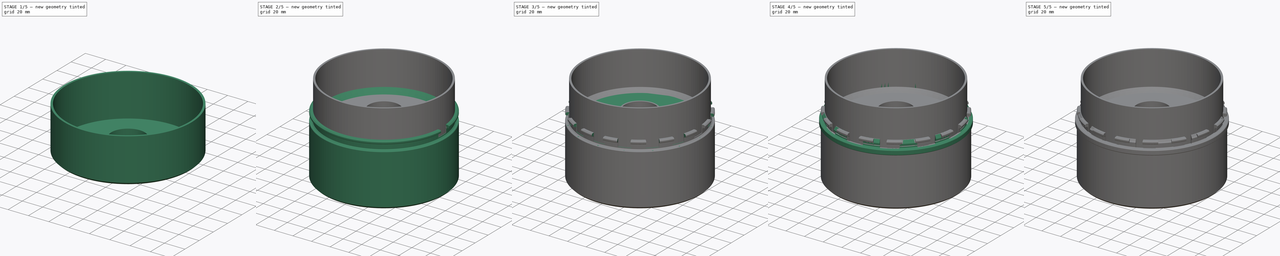
[diagram: build sequence overview — one tinted view per stage of 5, left to right]
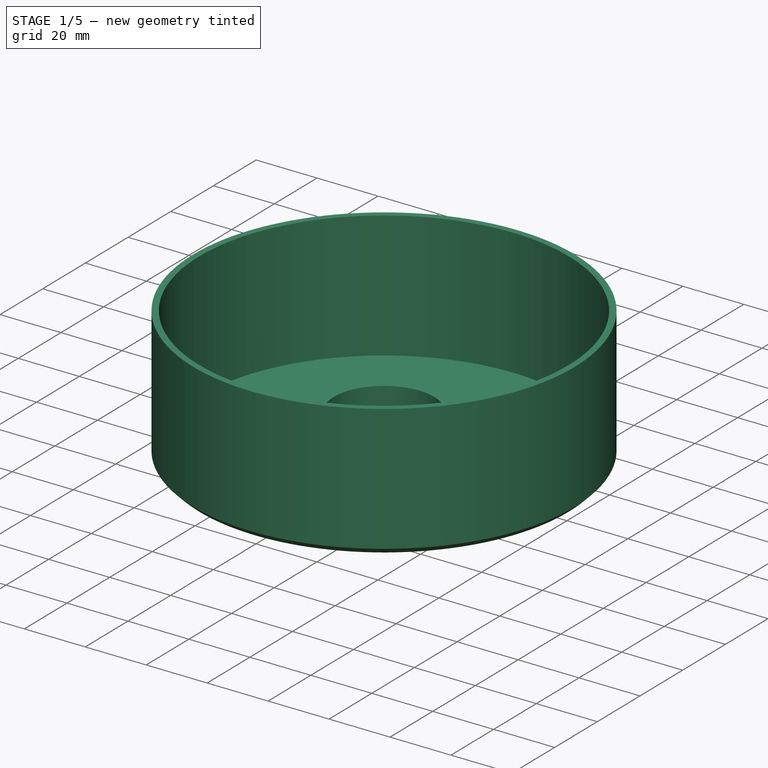
[diagram: stage 1 of 5 — iso view after this stage's code; geometry added in this stage tinted green]
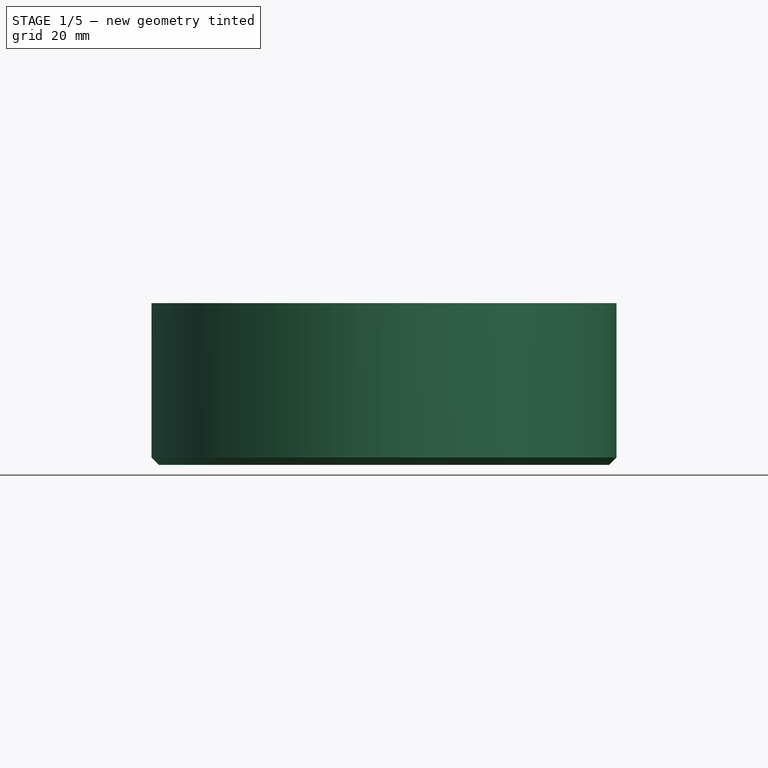
[diagram: stage 1 of 5 — front view after this stage's code; geometry added in this stage tinted green]
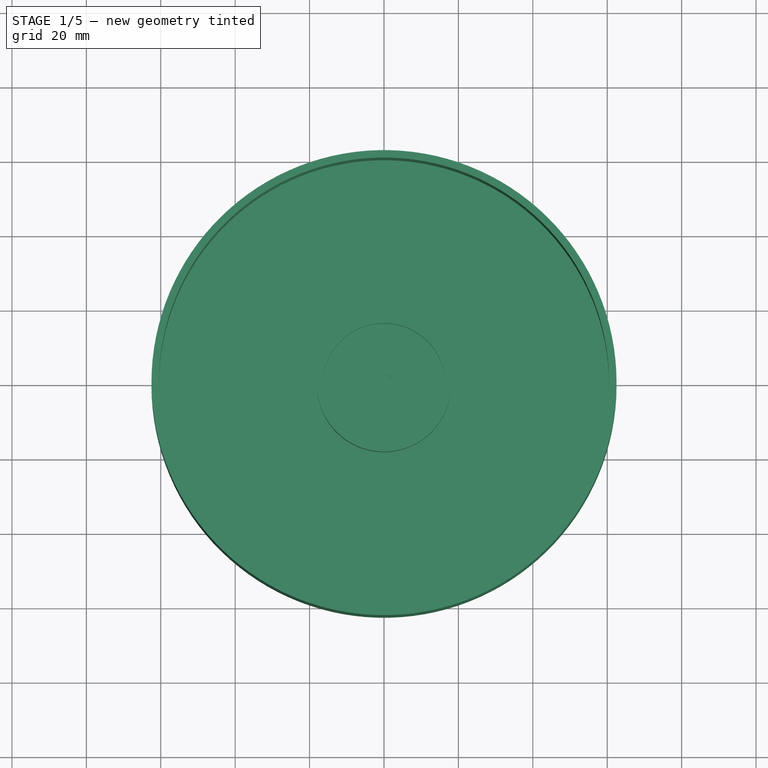
[diagram: stage 1 of 5 — top view after this stage's code; geometry added in this stage tinted green]
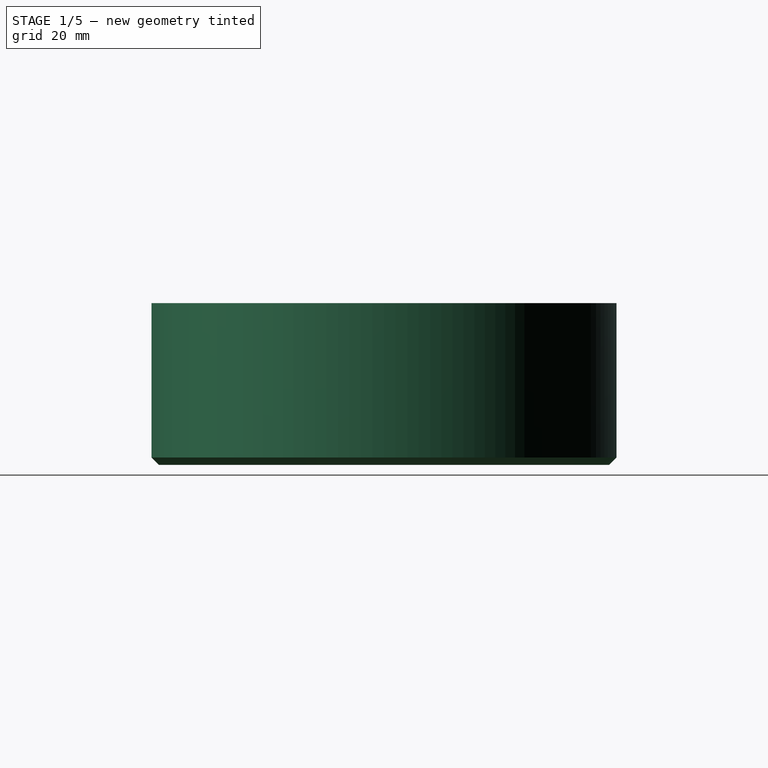
[diagram: stage 1 of 5 — right view after this stage's code; geometry added in this stage tinted green]
FCSTD DOCUMENT  (FreeCAD 1.2R20260526 (Git shallow))
Label: mb-wheel-caps 2
License: All rights reserved
LicenseURL: http://en.wikipedia.org/wiki/All_rights_reserved
objects: Sketcher::SketchObject×10, PartDesign::Revolution×5, PartDesign::Pocket×5, PartDesign::Body×5, App::Point×5, PartDesign::PolarPattern×4, PartDesign::Chamfer×2
note: 69 computed .brp shape members not serialized (recipe doc carries the construction recipe); baked Part::Feature solids carry a one-line shape summary decoded from their .brp

FEATURE [PartDesign::Body] Body003  label="Rear Cap"
  AllowCompound = true
  Group = -> [Sketch006,Revolution003,Sketch007,Pocket003,PolarPattern003]
  Origin = -> Origin006
  Placement = pos=(0,-211,0) rot=(0,0,1;0rad)
  Tip = -> PolarPattern003
FEATURE [Sketcher::SketchObject] Sketch008
  ArcFitTolerance = 1e-06
  AttachmentSupport = -> [XZ_Plane004]
  ExternalTypes = [0]
  FullyConstrained = true
  MakeInternals = false
  MapMode = 5
  Placement = pos=(0,0,0) rot=(1,0,0;1.5708rad)
  sketch-geometry (14):
    g0: LineSegment StartX=0 StartY=-2e-16 StartZ=0 EndX=62.5 EndY=-2e-16 EndZ=0
    g1: LineSegment StartX=62.5 StartY=-2e-16 StartZ=0 EndX=62.5 EndY=43.5 EndZ=0
    g2: LineSegment StartX=62.5 StartY=43.5 StartZ=0 EndX=60.5 EndY=43.5 EndZ=0
    g3: LineSegment StartX=60.5 StartY=43.5 StartZ=0 EndX=60.5 EndY=2 EndZ=0
    g4: LineSegment StartX=60.5 StartY=2 StartZ=0 EndX=18 EndY=2 EndZ=0
    g5: GeomPoint X=0 Y=1 Z=0
    g6: GeomPoint X=2.8 Y=7 Z=0
    g7: LineSegment StartX=0 StartY=-2e-16 StartZ=0 EndX=0 EndY=1 EndZ=0
    g8: LineSegment StartX=0 StartY=1 StartZ=0 EndX=2.8 EndY=1 EndZ=0
    g9: LineSegment StartX=2.8 StartY=1 StartZ=0 EndX=2.8 EndY=7 EndZ=0
    g10: LineSegment StartX=2.8 StartY=7 StartZ=0 EndX=16.5 EndY=7 EndZ=0
    g11: LineSegment StartX=18 StartY=2 StartZ=0 EndX=18 EndY=13.5 EndZ=0
    g12: LineSegment StartX=18 StartY=13.5 StartZ=0 EndX=16.5 EndY=13.5 EndZ=0
    g13: LineSegment StartX=16.5 StartY=13.5 StartZ=0 EndX=16.5 EndY=7 EndZ=0
  constraints (37):
    c: Horizontal(g0)
    c: Coincident(g0,g1)
    c: Vertical(g1)
    c: Coincident(g1,g2)
    c: Horizontal(g2)
    c: Coincident(g2,g3)
    c: Vertical(g3)
    c: Coincident(g3,g4)
    c: Coincident(g7,g0)
    c: Coincident(g7,g5)
    c: Vertical(g7)
    c: Coincident(g7,g8)
    c: Coincident(g8,g9)
    c: Coincident(g9,g6)
    c: Coincident(g9,g10)
    c: Horizontal(g10)
    c: Vertical(g9)
    c: Horizontal(g8)
    c: DistanceY(g7,g7) = 1
    c: DistanceX(g8,g8) = 2.8
    c: DistanceX(g0,g3) = 60.5
    c: DistanceX(g2,g2) = 2
    c: DistanceY(g9,g9) = 6
    c: Vertical(g11)
    c: Coincident(g11,g12)
    c: Horizontal(g12)
    c: Coincident(g12,g13)
    c: Coincident(g13,g10)
    c: Vertical(g13)
    c: Horizontal(g4)
    c: Coincident(g11,g4)
    c: DistanceY(g13,g13) = 6.5
    c: DistanceY(g0,g3) = 2
    c: DistanceY(g11,g2) = 30
    c: Coincident(g0,g-1)
    c: DistanceX(g12,g12) = 1.5
    c: DistanceX(g5,g12) = 16.5
FEATURE [App::Point] Origin009  label="Origin-Point002"
  Role = Origin
FEATURE [PartDesign::Revolution] Revolution004
  Angle = 360
  Angle2 = 0
  Axis = (0,2e-16,1)
  Base = (0,0,0)
  FuseOrder = 0
  FuzzyTolerance = 0
  Placement = pos=(0,0,0) rot=(1,0,0;1.5708rad)
  Profile = -> Sketch008
  ReferenceAxis = -> Sketch008 [V_Axis]
  Refine = true
  Reversed = true
  Suppressed = false
  Type = 0
FEATURE [Sketcher::SketchObject] Sketch009
  ArcFitTolerance = 1e-06
  AttachmentSupport = -> [Revolution004]
  ExternalTypes = [0]
  FullyConstrained = true
  MakeInternals = false
  MapMode = 5
  Placement = pos=(0,2e-16,1) rot=(0,0,1;3.14159rad)
  sketch-geometry (7):
    g0: LineSegment StartX=0 StartY=-4.6188 StartZ=0 EndX=4 EndY=-2.3094 EndZ=0
    g1: LineSegment StartX=4 StartY=-2.3094 StartZ=0 EndX=4 EndY=2.3094 EndZ=0
    g2: LineSegment StartX=4 StartY=2.3094 StartZ=0 EndX=0 EndY=4.6188 EndZ=0
    g3: LineSegment StartX=0 StartY=4.6188 StartZ=0 EndX=-4 EndY=2.3094 EndZ=0
    g4: LineSegment StartX=-4 StartY=2.3094 StartZ=0 EndX=-4 EndY=-2.3094 EndZ=0
    g5: LineSegment StartX=-4 StartY=-2.3094 StartZ=0 EndX=0 EndY=-4.6188 EndZ=0
    g6: Circle [constr] CenterX=0 CenterY=0 CenterZ=0 NormalX=0 NormalY=0 NormalZ=1 AngleXU=0 Radius=4.6188
  constraints (16):
    c: Coincident(g0,g1)
    c: Coincident(g1,g2)
    c: Coincident(g2,g3)
    c: Coincident(g3,g4)
    c: Coincident(g4,g5)
    c: Coincident(g5,g0)
    c: Equal(g0, g1-g5) x5
    c: PointOnObject(g0,g6)
    c: PointOnObject(g1,g6)
    c: PointOnObject(g2,g6)
    c: PointOnObject(g3,g6)
    c: PointOnObject(g4,g6)
    c: PointOnObject(g5,g6)
    c: Coincident(g6,g-1)
    c: PointOnObject(g0,g-2)
    c: DistanceX(g4,g0) = 8
FEATURE [PartDesign::Pocket] Pocket004
  BaseFeature = -> Revolution004
  Direction = (0,0,-1)
  FuzzyTolerance = 0
  Length = 4
  Length2 = 5
  Placement = pos=(0,0,0) rot=(1,0,0;1.5708rad)
  Profile = -> Sketch009
  ReferenceAxis = -> Sketch009 [N_Axis]
  Refine = true
  Reversed = true
  SideType = 0
  Suppressed = false
  Type = 0
  Type2 = 0
FEATURE [PartDesign::Chamfer] Chamfer
  Angle = 45
  Base = -> Pocket004 [Edge1]
  BaseFeature = -> Pocket004
  ChamferType = 0
  FlipDirection = false
  FuzzyTolerance = 0
  Placement = pos=(0,0,0) rot=(1,0,0;1.5708rad)
  Refine = true
  Size = 2
  Size2 = 1
  SupportTransform = false
  Suppressed = false
  UseAllEdges = false
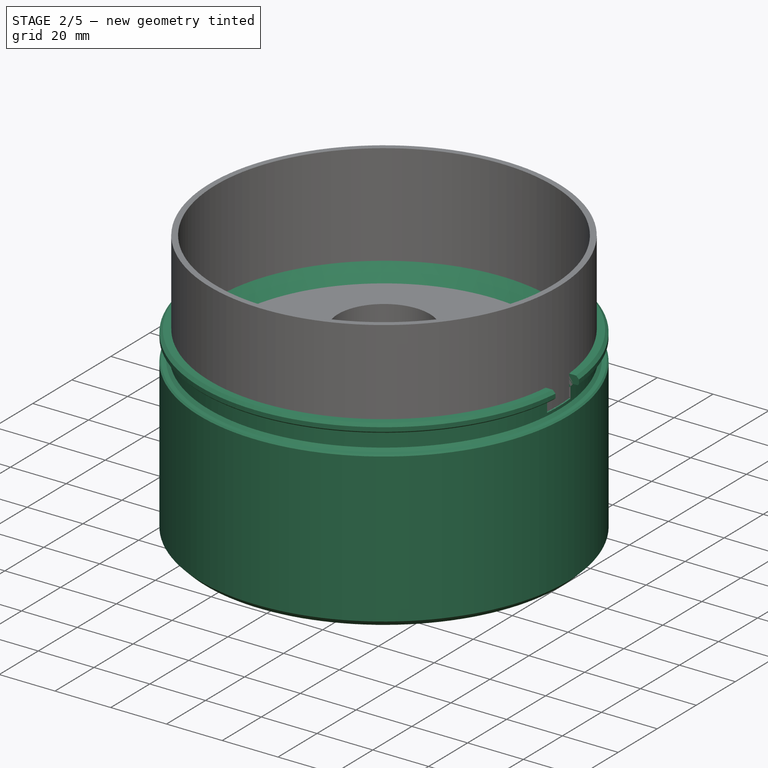
[diagram: stage 2 of 5 — iso view after this stage's code; geometry added in this stage tinted green]
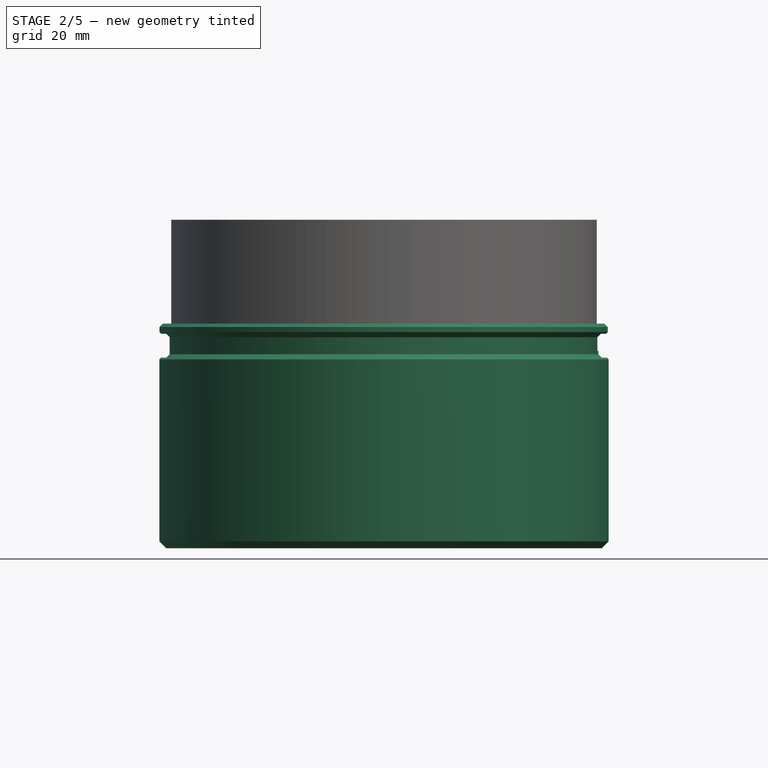
[diagram: stage 2 of 5 — front view after this stage's code; geometry added in this stage tinted green]
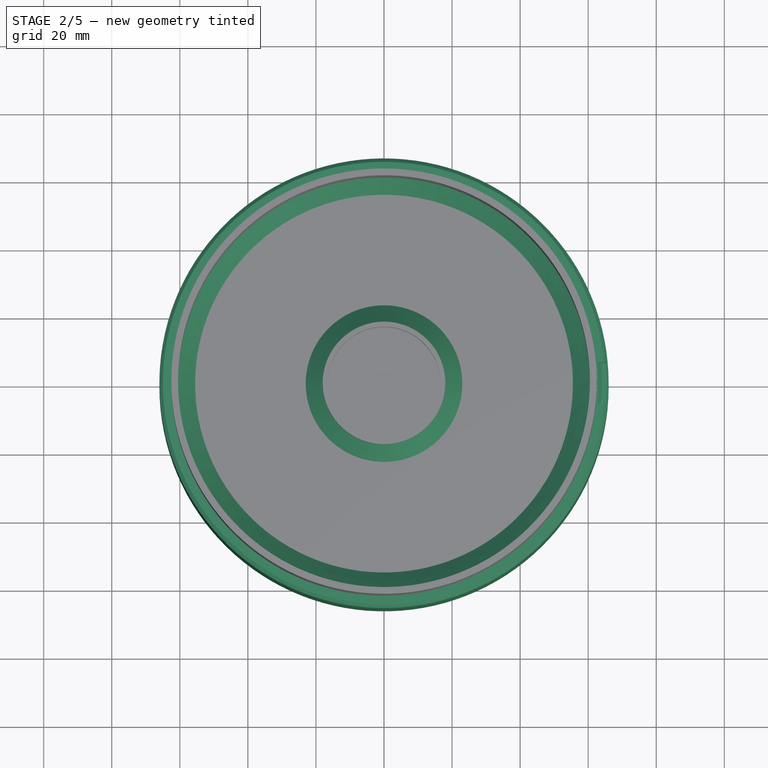
[diagram: stage 2 of 5 — top view after this stage's code; geometry added in this stage tinted green]
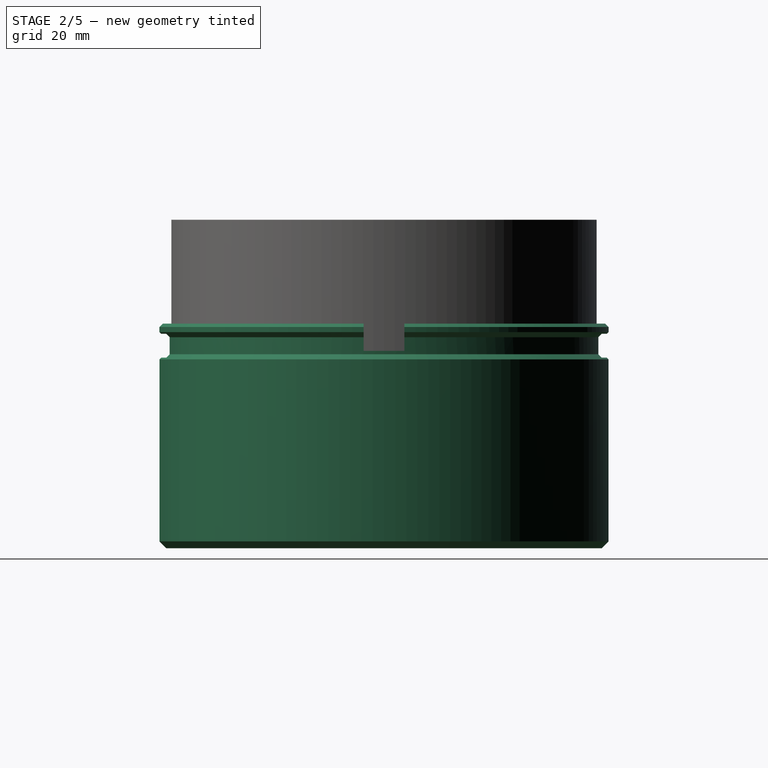
[diagram: stage 2 of 5 — right view after this stage's code; geometry added in this stage tinted green]
FEATURE [PartDesign::Body] Body002  label="Front Cap"
  AllowCompound = false
  Group = -> [Sketch004,Revolution002,Sketch005,Pocket002,PolarPattern002]
  Origin = -> Origin002
  Tip = -> PolarPattern002
FEATURE [App::Point] Origin003  label="Origin-Point"
  Role = Origin
FEATURE [App::Point] Origin004  label="Origin-Point"
  Role = Origin
FEATURE [App::Point] Origin005  label="Origin-Point"
  Role = Origin
FEATURE [App::Point] Origin007  label="Origin-Point001"
  Role = Origin
FEATURE [Sketcher::SketchObject] Sketch006
  ArcFitTolerance = 1e-06
  AttachmentSupport = -> [XZ_Plane003]
  ExternalTypes = [0]
  FullyConstrained = true
  MakeInternals = false
  MapMode = 5
  Placement = pos=(0,0,0) rot=(1,0,0;1.5708rad)
  sketch-geometry (37):
    g0: LineSegment StartX=65.5 StartY=3 StartZ=0 EndX=64 EndY=3 EndZ=0
    g1: LineSegment StartX=63 StartY=4 StartZ=0 EndX=63 EndY=9 EndZ=0
    g2: LineSegment StartX=64 StartY=10 StartZ=0 EndX=65.5 EndY=10 EndZ=0
    g3: LineSegment StartX=66 StartY=10.5 StartZ=0 EndX=66 EndY=12 EndZ=0
    g4: LineSegment StartX=65 StartY=13 StartZ=0 EndX=62 EndY=13 EndZ=0
    g5: LineSegment StartX=61 StartY=12 StartZ=0 EndX=61 EndY=7 EndZ=0
    g6: LineSegment [constr] StartX=57 StartY=3 StartZ=0 EndX=0 EndY=3 EndZ=0
    g7: LineSegment [constr] StartX=0 StartY=3 StartZ=0 EndX=0 EndY=0 EndZ=0
    g8: ArcOfCircle [constr] CenterX=65.5 CenterY=10.5 CenterZ=0 NormalX=0 NormalY=0 NormalZ=1 AngleXU=0 Radius=0.5 StartAngle=4.71239 EndAngle=6.28319
    g9: ArcOfCircle [constr] CenterX=64 CenterY=4 CenterZ=0 NormalX=0 NormalY=0 NormalZ=1 AngleXU=0 Radius=1 StartAngle=3.14159 EndAngle=4.71239
    g10: ArcOfCircle [constr] CenterX=64 CenterY=9 CenterZ=0 NormalX=0 NormalY=0 NormalZ=1 AngleXU=0 Radius=1 StartAngle=1.5708 EndAngle=3.14159
    g11: ArcOfCircle [constr] CenterX=65 CenterY=12 CenterZ=0 NormalX=0 NormalY=0 NormalZ=1 AngleXU=0 Radius=1 StartAngle=-9e-16 EndAngle=1.5708
    g12: ArcOfCircle [constr] CenterX=62 CenterY=12 CenterZ=0 NormalX=0 NormalY=0 NormalZ=1 AngleXU=0 Radius=1 StartAngle=1.5708 EndAngle=3.14159
    g13: ArcOfCircle [constr] CenterX=57 CenterY=7 CenterZ=0 NormalX=0 NormalY=0 NormalZ=1 AngleXU=0 Radius=4 StartAngle=4.71239 EndAngle=6.28319
    g14: LineSegment StartX=66 StartY=2.5 StartZ=0 EndX=66 EndY=1 EndZ=0
    g15: ArcOfCircle [constr] CenterX=65.5 CenterY=2.5 CenterZ=0 NormalX=0 NormalY=0 NormalZ=1 AngleXU=0 Radius=0.5 StartAngle=0 EndAngle=1.5708
    g16: ArcOfCircle [constr] CenterX=65 CenterY=1 CenterZ=0 NormalX=0 NormalY=0 NormalZ=1 AngleXU=0 Radius=1 StartAngle=4.71239 EndAngle=6.28319
    g17: LineSegment [constr] StartX=65 StartY=0 StartZ=0 EndX=66 EndY=1 EndZ=0
    g18: LineSegment StartX=65 StartY=13 StartZ=0 EndX=66 EndY=12 EndZ=0
    g19: LineSegment StartX=62 StartY=13 StartZ=0 EndX=61 EndY=12 EndZ=0
    g20: LineSegment StartX=65.5 StartY=3 StartZ=0 EndX=66 EndY=2.5 EndZ=0
    g21: LineSegment StartX=64 StartY=3 StartZ=0 EndX=63 EndY=4 EndZ=0
    g22: LineSegment StartX=63 StartY=9 StartZ=0 EndX=64 EndY=10 EndZ=0
    g23: LineSegment StartX=65.5 StartY=10 StartZ=0 EndX=66 EndY=10.5 EndZ=0
    g24: LineSegment StartX=61 StartY=7 StartZ=0 EndX=57 EndY=3 EndZ=0
    g25: LineSegment [constr] StartX=0 StartY=0 StartZ=0 EndX=65 EndY=0 EndZ=0
    g26: LineSegment StartX=57 StartY=3 StartZ=0 EndX=57 EndY=-48 EndZ=0
    g27: LineSegment StartX=55 StartY=-50 StartZ=0 EndX=0 EndY=-50 EndZ=0
    g28: LineSegment StartX=0 StartY=-50 StartZ=0 EndX=0 EndY=-53 EndZ=0
    g29: LineSegment StartX=0 StartY=-53 StartZ=0 EndX=64 EndY=-53 EndZ=0
    g30: LineSegment StartX=66 StartY=1 StartZ=0 EndX=66 EndY=-51 EndZ=0
    g31: ArcOfCircle [constr] CenterX=55 CenterY=-48 CenterZ=0 NormalX=0 NormalY=0 NormalZ=1 AngleXU=0 Radius=2 StartAngle=4.71239 EndAngle=6.28319
    g32: GeomPoint [constr] X=57 Y=-50 Z=0
    g33: LineSegment StartX=55 StartY=-50 StartZ=0 EndX=57 EndY=-48 EndZ=0
    g34: ArcOfCircle [constr] CenterX=64 CenterY=-51 CenterZ=0 NormalX=0 NormalY=0 NormalZ=1 AngleXU=0 Radius=2 StartAngle=4.71239 EndAngle=6.28319
    g35: GeomPoint [constr] X=66 Y=-53 Z=0
    g36: LineSegment StartX=64 StartY=-53 StartZ=0 EndX=66 EndY=-51 EndZ=0
  constraints (89):
    c: Horizontal(g0)
    c: Vertical(g1)
    c: Horizontal(g2)
    c: Vertical(g3)
    c: Horizontal(g4)
    c: Vertical(g5)
    c: Horizontal(g6)
    c: Coincident(g6,g7)
    c: Vertical(g7)
    c: Tangent(g2,g8) = -1.5708
    c: Tangent(g3,g8) = -1.5708
    c: Tangent(g0,g9) = 1.5708
    c: Tangent(g1,g9) = 1.5708
    c: Tangent(g1,g10) = 1.5708
    c: Tangent(g2,g10) = 1.5708
    c: Tangent(g3,g11) = -1.5708
    c: Tangent(g4,g11) = -1.5708
    c: Tangent(g4,g12) = -1.5708
    c: Tangent(g5,g12) = -1.5708
    c: Tangent(g5,g13) = 1.5708
    c: Tangent(g6,g13) = 1.5708
    c: Vertical(g14)
    c: Tangent(g0,g15) = -1.5708
    c: Tangent(g14,g15) = 1.5708
    c: Tangent(g14,g16) = 1.5708
    c: Coincident(g17,g14)
    c: DistanceY(g0,g2) = 7
    c: DistanceX(g1,g14) = 3
    c: Vertical(g14,g3)
    c: Radius(g8) = 0.5
    c: DistanceX(g5,g3) = 5
    c: Equal(g9,g10)
    c: Radius(g9) = 1
    c: Radius(g11) = 1
    c: Equal(g11,g12)
    c: Coincident(g18,g4)
    c: Coincident(g18,g3)
    c: Coincident(g19,g4)
    c: Coincident(g19,g5)
    c: Coincident(g20,g0)
    c: Coincident(g20,g14)
    c: Coincident(g21,g0)
    c: Coincident(g21,g1)
    c: Coincident(g22,g1)
    c: Coincident(g22,g2)
    c: Coincident(g23,g2)
    c: Coincident(g23,g3)
    c: Coincident(g24,g5)
    c: Coincident(g24,g6)
    c: DistanceY(g7,g6) = 3
    c: Radius(g13) = 4
    c: Radius(g16) = 1
    c: DistanceY(g16,g0) = 3
    c: Radius(g15) = 0.5
    c: DistanceY(g2,g4) = 3
    c: DistanceX(g-1,g1) = 63
    c: PointOnObject(g16,g-1)
    c: PointOnObject(g6,g-2)
    c: Coincident(g25,g7)
    c: Coincident(g25,g17)
    c: Horizontal(g25)
    c: Coincident(g17,g16)
    c: Vertical(g16,g16)
    c: Vertical(g26)
    c: PointOnObject(g27,g-2)
    c: Horizontal(g27)
    c: Coincident(g27,g28)
    c: Vertical(g28)
    c: Coincident(g28,g29)
    c: Horizontal(g29)
    c: Coincident(g30,g14)
    c: Vertical(g30)
    c: DistanceY(g27,g7) = 50
    c: DistanceY(g28,g28) = 3
    c: Coincident(g26,g6)
    c: PointOnObject(g32,g26)
    c: PointOnObject(g32,g27)
    c: Tangent(g26,g31) = 1.5708
    c: Tangent(g27,g31) = 1.5708
    c: Coincident(g33,g26)
    c: Coincident(g33,g27)
    c: PointOnObject(g35,g29)
    c: PointOnObject(g35,g30)
    c: Tangent(g29,g34) = -1.5708
    c: Tangent(g30,g34) = 1.5708
    c: Coincident(g36,g29)
    c: Coincident(g36,g30)
    c: Radius(g34) = 2
    c: Radius(g31) = 2
FEATURE [PartDesign::Revolution] Revolution003
  Angle = 360
  Angle2 = 0
  Axis = (0,2e-16,1)
  Base = (0,0,0)
  FuseOrder = 0
  FuzzyTolerance = 0
  Placement = pos=(0,0,0) rot=(1,0,0;1.5708rad)
  Profile = -> Sketch006
  ReferenceAxis = -> Sketch006 [V_Axis]
  Refine = true
  Reversed = true
  Suppressed = false
  Type = 0
FEATURE [Sketcher::SketchObject] Sketch007
  ArcFitTolerance = 0
  AttachmentOffset = pos=(0,0,5) rot=(0,0,1;0rad)
  AttachmentSupport = -> [XY_Plane003]
  ExternalTypes = [0]
  FullyConstrained = false
  MakeInternals = false
  MapMode = 5
  Placement = pos=(0,0,5) rot=(0,0,1;0rad)
  sketch-geometry (4):
    g0: LineSegment StartX=37.023 StartY=6 StartZ=0 EndX=37.023 EndY=-6 EndZ=0
    g1: LineSegment StartX=37.023 StartY=-6 StartZ=0 EndX=72.6487 EndY=-6 EndZ=0
    g2: LineSegment StartX=72.6487 StartY=-6 StartZ=0 EndX=72.6487 EndY=6 EndZ=0
    g3: LineSegment StartX=72.6487 StartY=6 StartZ=0 EndX=37.023 EndY=6 EndZ=0
  constraints (9):
    c: Coincident(g0,g1)
    c: Coincident(g1,g2)
    c: Coincident(g2,g3)
    c: Coincident(g3,g0)
    c: Vertical(g0)
    c: Horizontal(g1)
    c: Horizontal(g3)
    c: Symmetric(g2,g1,g-1)
    c: DistanceY(g2,g2) = 12
FEATURE [PartDesign::Pocket] Pocket003
  BaseFeature = -> Revolution003
  Direction = (0,0,-1)
  FuzzyTolerance = 0
  Length = 5
  Length2 = 5
  Placement = pos=(0,0,0) rot=(1,0,0;1.5708rad)
  Profile = -> Sketch007
  ReferenceAxis = -> Sketch007 [N_Axis]
  Refine = true
  Reversed = true
  SideType = 0
  Suppressed = false
  Type = 1
  Type2 = 0
FEATURE [PartDesign::Chamfer] Chamfer001
  Angle = 45
  Base = -> Chamfer [Face6]
  BaseFeature = -> Chamfer
  ChamferType = 0
  FlipDirection = false
  FuzzyTolerance = 0
  Placement = pos=(0,0,0) rot=(1,0,0;1.5708rad)
  Refine = true
  Size = 5
  Size2 = 1
  SupportTransform = false
  Suppressed = false
  UseAllEdges = false
FEATURE [PartDesign::Body] Body004  label="Body"
  AllowCompound = true
  Group = -> [Sketch008,Revolution004,Sketch009,Pocket004,Chamfer,Chamfer001]
  Origin = -> Origin008
  Tip = -> Chamfer001
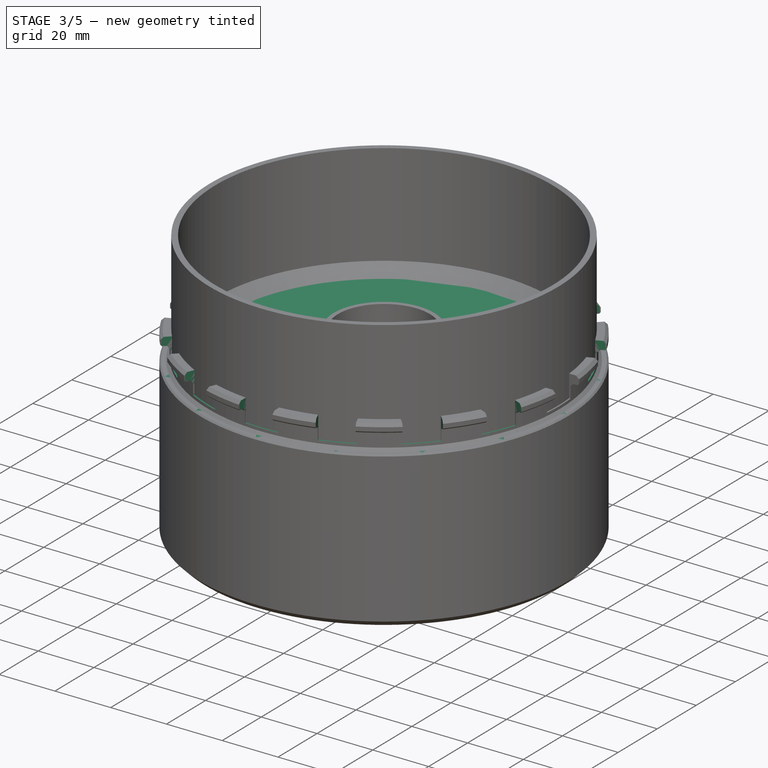
[diagram: stage 3 of 5 — iso view after this stage's code; geometry added in this stage tinted green]
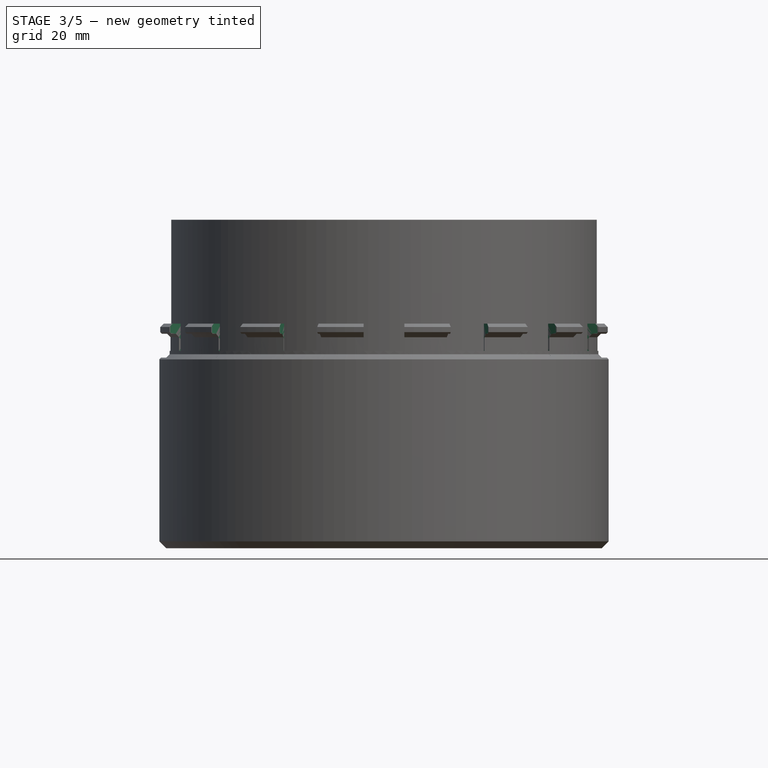
[diagram: stage 3 of 5 — front view after this stage's code; geometry added in this stage tinted green]
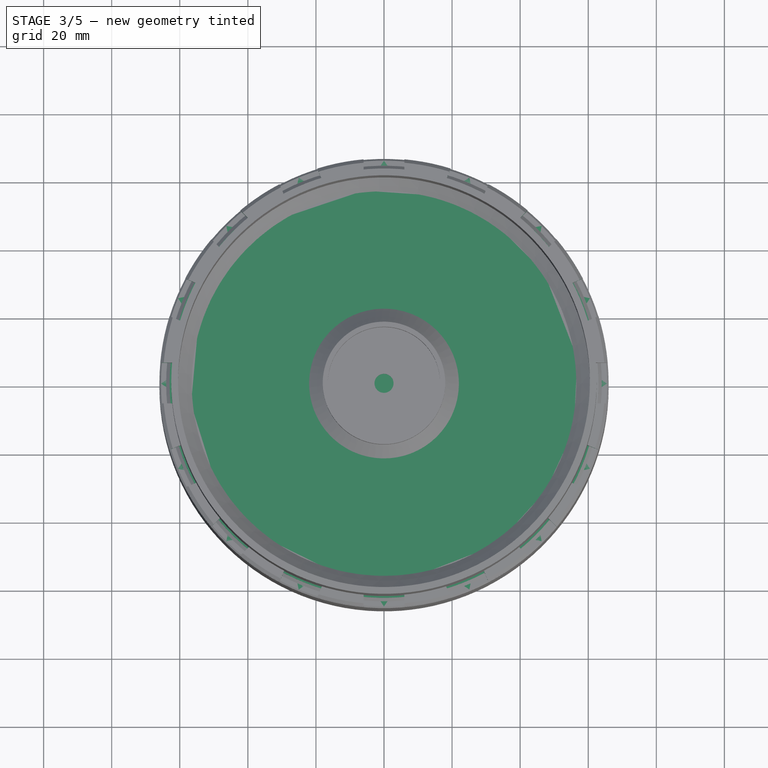
[diagram: stage 3 of 5 — top view after this stage's code; geometry added in this stage tinted green]
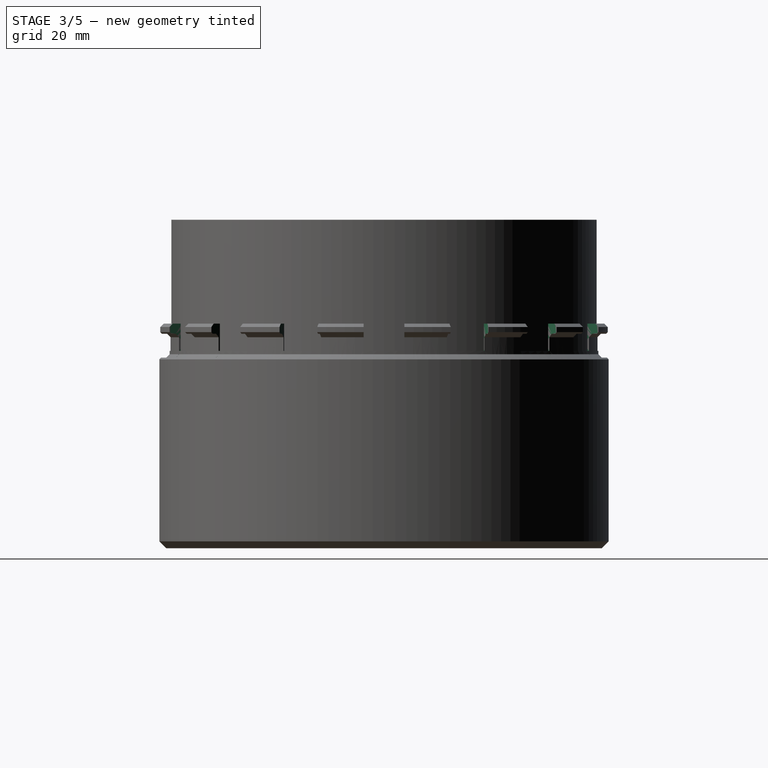
[diagram: stage 3 of 5 — right view after this stage's code; geometry added in this stage tinted green]
FEATURE [PartDesign::Body] Body001  label="cap"
  AllowCompound = false
  Group = -> [Sketch002,Revolution001,Sketch003,Pocket001,PolarPattern001]
  Origin = -> Origin001
  Tip = -> PolarPattern001
FEATURE [Sketcher::SketchObject] Sketch004
  ArcFitTolerance = 1e-06
  AttachmentSupport = -> [XZ_Plane002]
  ExternalTypes = [0]
  FullyConstrained = true
  MakeInternals = false
  MapMode = 5
  Placement = pos=(0,0,0) rot=(1,0,0;1.5708rad)
  sketch-geometry (26):
    g0: LineSegment StartX=65.5 StartY=3 StartZ=0 EndX=64 EndY=3 EndZ=0
    g1: LineSegment StartX=63 StartY=4 StartZ=0 EndX=63 EndY=9 EndZ=0
    g2: LineSegment StartX=64 StartY=10 StartZ=0 EndX=65.5 EndY=10 EndZ=0
    g3: LineSegment StartX=66 StartY=10.5 StartZ=0 EndX=66 EndY=12 EndZ=0
    g4: LineSegment StartX=65 StartY=13 StartZ=0 EndX=62 EndY=13 EndZ=0
    g5: LineSegment StartX=61 StartY=12 StartZ=0 EndX=61 EndY=7 EndZ=0
    g6: LineSegment StartX=57 StartY=3 StartZ=0 EndX=0 EndY=3 EndZ=0
    g7: LineSegment StartX=0 StartY=3 StartZ=0 EndX=0 EndY=0 EndZ=0
    g8: ArcOfCircle [constr] CenterX=65.5 CenterY=10.5 CenterZ=0 NormalX=0 NormalY=0 NormalZ=1 AngleXU=0 Radius=0.5 StartAngle=4.71239 EndAngle=6.28319
    g9: ArcOfCircle [constr] CenterX=64 CenterY=4 CenterZ=0 NormalX=0 NormalY=0 NormalZ=1 AngleXU=0 Radius=1 StartAngle=3.14159 EndAngle=4.71239
    g10: ArcOfCircle [constr] CenterX=64 CenterY=9 CenterZ=0 NormalX=0 NormalY=0 NormalZ=1 AngleXU=0 Radius=1 StartAngle=1.5708 EndAngle=3.14159
    g11: ArcOfCircle [constr] CenterX=65 CenterY=12 CenterZ=0 NormalX=0 NormalY=0 NormalZ=1 AngleXU=0 Radius=1 StartAngle=9e-16 EndAngle=1.5708
    g12: ArcOfCircle [constr] CenterX=62 CenterY=12 CenterZ=0 NormalX=0 NormalY=0 NormalZ=1 AngleXU=0 Radius=1 StartAngle=1.5708 EndAngle=3.14159
    g13: ArcOfCircle [constr] CenterX=57 CenterY=7 CenterZ=0 NormalX=0 NormalY=0 NormalZ=1 AngleXU=0 Radius=4 StartAngle=4.71239 EndAngle=6.28319
    g14: LineSegment StartX=66 StartY=2.5 StartZ=0 EndX=66 EndY=1 EndZ=0
    g15: ArcOfCircle [constr] CenterX=65.5 CenterY=2.5 CenterZ=0 NormalX=0 NormalY=0 NormalZ=1 AngleXU=0 Radius=0.5 StartAngle=0 EndAngle=1.5708
    g16: ArcOfCircle [constr] CenterX=65 CenterY=1 CenterZ=0 NormalX=0 NormalY=0 NormalZ=1 AngleXU=0 Radius=1 StartAngle=4.71239 EndAngle=6.28319
    g17: LineSegment StartX=65 StartY=0 StartZ=0 EndX=66 EndY=1 EndZ=0
    g18: LineSegment StartX=65 StartY=13 StartZ=0 EndX=66 EndY=12 EndZ=0
    g19: LineSegment StartX=62 StartY=13 StartZ=0 EndX=61 EndY=12 EndZ=0
    g20: LineSegment StartX=65.5 StartY=3 StartZ=0 EndX=66 EndY=2.5 EndZ=0
    g21: LineSegment StartX=64 StartY=3 StartZ=0 EndX=63 EndY=4 EndZ=0
    g22: LineSegment StartX=63 StartY=9 StartZ=0 EndX=64 EndY=10 EndZ=0
    g23: LineSegment StartX=65.5 StartY=10 StartZ=0 EndX=66 EndY=10.5 EndZ=0
    g24: LineSegment StartX=61 StartY=7 StartZ=0 EndX=57 EndY=3 EndZ=0
    g25: LineSegment StartX=0 StartY=0 StartZ=0 EndX=65 EndY=0 EndZ=0
  constraints (63):
    c: Horizontal(g0)
    c: Vertical(g1)
    c: Horizontal(g2)
    c: Vertical(g3)
    c: Horizontal(g4)
    c: Vertical(g5)
    c: Horizontal(g6)
    c: Coincident(g6,g7)
    c: Vertical(g7)
    c: Tangent(g2,g8) = -1.5708
    c: Tangent(g3,g8) = -1.5708
    c: Tangent(g0,g9) = 1.5708
    c: Tangent(g1,g9) = 1.5708
    c: Tangent(g1,g10) = 1.5708
    c: Tangent(g2,g10) = 1.5708
    c: Tangent(g3,g11) = -1.5708
    c: Tangent(g4,g11) = -1.5708
    c: Tangent(g4,g12) = -1.5708
    c: Tangent(g5,g12) = -1.5708
    c: Tangent(g5,g13) = 1.5708
    c: Tangent(g6,g13) = 1.5708
    c: Vertical(g14)
    c: Tangent(g0,g15) = -1.5708
    c: Tangent(g14,g15) = 1.5708
    c: Tangent(g14,g16) = 1.5708
    c: Coincident(g17,g14)
    c: DistanceY(g0,g2) = 7
    c: DistanceX(g1,g14) = 3
    c: Vertical(g14,g3)
    c: Radius(g8) = 0.5
    c: DistanceX(g5,g3) = 5
    c: Equal(g9,g10)
    c: Radius(g9) = 1
    c: Radius(g11) = 1
    c: Equal(g11,g12)
    c: Coincident(g18,g4)
    c: Coincident(g18,g3)
    c: Coincident(g19,g4)
    c: Coincident(g19,g5)
    c: Coincident(g20,g0)
    c: Coincident(g20,g14)
    c: Coincident(g21,g0)
    c: Coincident(g21,g1)
    c: Coincident(g22,g1)
    c: Coincident(g22,g2)
    c: Coincident(g23,g2)
    c: Coincident(g23,g3)
    c: Coincident(g24,g5)
    c: Coincident(g24,g6)
    c: DistanceY(g7,g6) = 3
    c: Radius(g13) = 4
    c: Radius(g16) = 1
    c: DistanceY(g16,g0) = 3
    c: Radius(g15) = 0.5
    c: DistanceY(g2,g4) = 3
    c: DistanceX(g-1,g1) = 63
    c: PointOnObject(g16,g-1)
    c: PointOnObject(g6,g-2)
    c: Coincident(g25,g7)
    c: Coincident(g25,g17)
    c: Horizontal(g25)
    c: Coincident(g17,g16)
    c: Vertical(g16,g16)
FEATURE [PartDesign::Revolution] Revolution002
  Angle = 360
  Angle2 = 60
  Axis = (0,2e-16,1)
  Base = (0,0,0)
  FuseOrder = 0
  FuzzyTolerance = 0
  Placement = pos=(0,0,0) rot=(1,0,0;1.5708rad)
  Profile = -> Sketch004
  ReferenceAxis = -> Sketch004 [V_Axis]
  Refine = true
  Reversed = true
  Suppressed = false
  Type = 0
FEATURE [Sketcher::SketchObject] Sketch005
  ArcFitTolerance = 1e-06
  AttachmentSupport = -> [Revolution002]
  ExternalTypes = [0]
  FullyConstrained = false
  MakeInternals = false
  MapMode = 5
  Placement = pos=(0,1.3e-15,3) rot=(0,0,1;3.14159rad)
  sketch-geometry (4):
    g0: LineSegment StartX=47.3342 StartY=6 StartZ=0 EndX=47.3342 EndY=-6 EndZ=0
    g1: LineSegment StartX=47.3342 StartY=-6 StartZ=0 EndX=74.0557 EndY=-6 EndZ=0
    g2: LineSegment StartX=74.0557 StartY=-6 StartZ=0 EndX=74.0557 EndY=6 EndZ=0
    g3: LineSegment StartX=74.0557 StartY=6 StartZ=0 EndX=47.3342 EndY=6 EndZ=0
  constraints (9):
    c: Coincident(g0,g1)
    c: Coincident(g1,g2)
    c: Coincident(g2,g3)
    c: Coincident(g3,g0)
    c: Vertical(g2)
    c: Horizontal(g1)
    c: Horizontal(g3)
    c: DistanceY(g2,g2) = 12
    c: Symmetric(g0,g0,g-1)
FEATURE [PartDesign::Pocket] Pocket002
  BaseFeature = -> Revolution002
  Direction = (0,0,-1)
  FuzzyTolerance = 0
  Length = 5
  Length2 = 5
  Placement = pos=(0,0,0) rot=(1,0,0;1.5708rad)
  Profile = -> Sketch005
  ReferenceAxis = -> Sketch005 [N_Axis]
  Refine = true
  Reversed = true
  SideType = 0
  Suppressed = false
  Type = 1
  Type2 = 0
FEATURE [PartDesign::PolarPattern] PolarPattern002
  Angle = 360
  Axis = -> Sketch005 [N_Axis]
  BaseFeature = -> Pocket002
  FuzzyTolerance = 0
  Mode = 0
  Occurrences = 16
  Offset = 120
  Originals = -> [Pocket002]
  Placement = pos=(0,0,0) rot=(1,0,0;1.5708rad)
  Refine = true
  SpacingPattern = [0]
  Spacings = [-1,-1,-1,-1,-1,-1,-1,-1,-1,-1,-1,-1,-1,-1,-1]
  Suppressed = false
  TransformMode = 0
FEATURE [PartDesign::PolarPattern] PolarPattern003
  Angle = 360
  Axis = -> Sketch007 [N_Axis]
  BaseFeature = -> Pocket003
  FuzzyTolerance = 0
  Mode = 0
  Occurrences = 16
  Offset = 120
  Originals = -> [Pocket003]
  Placement = pos=(0,0,0) rot=(1,0,0;1.5708rad)
  Refine = true
  SpacingPattern = [0]
  Spacings = [-1,-1,-1,-1,-1,-1,-1,-1,-1,-1,-1,-1,-1,-1,-1]
  Suppressed = false
  TransformMode = 0
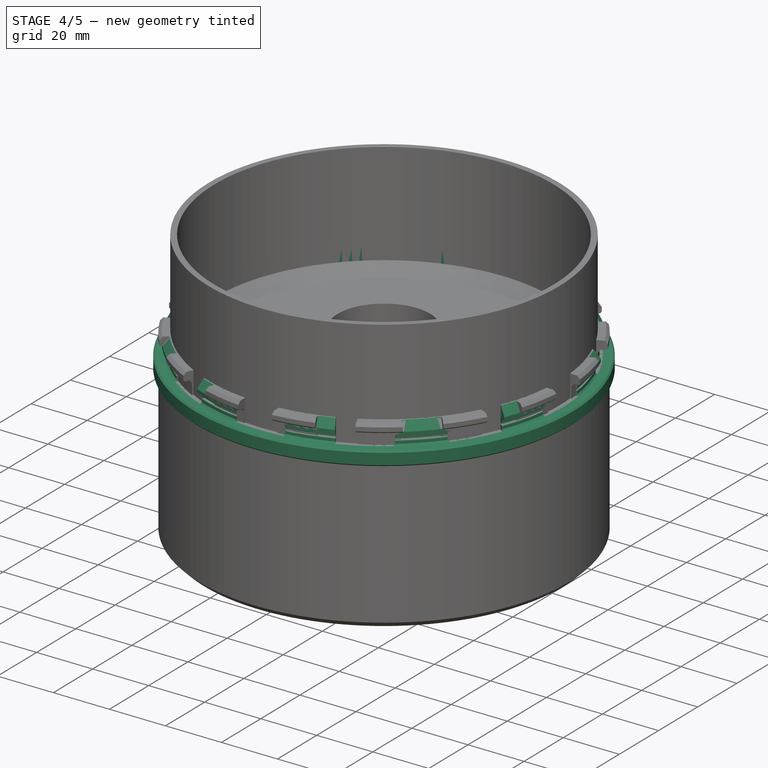
[diagram: stage 4 of 5 — iso view after this stage's code; geometry added in this stage tinted green]
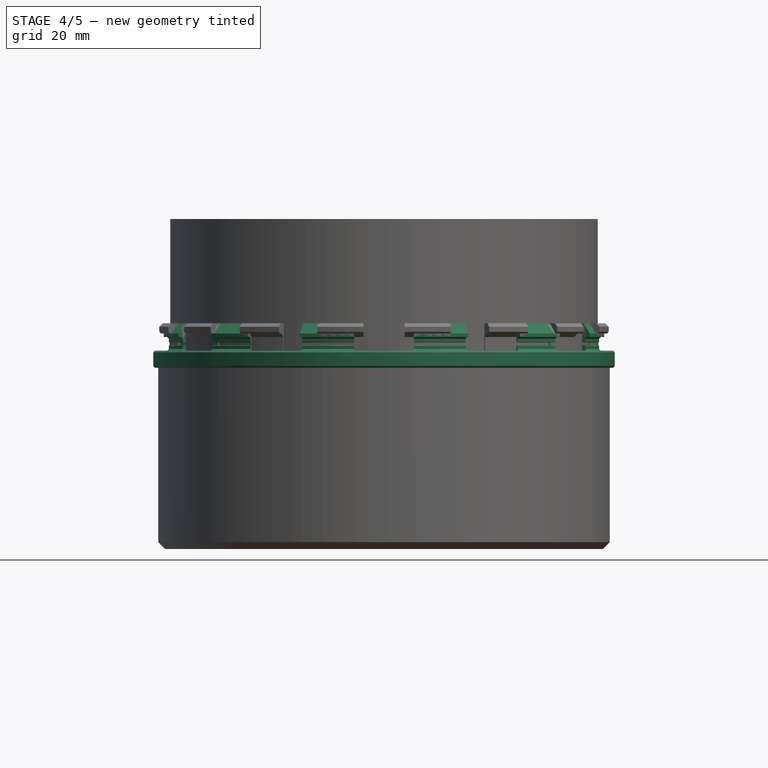
[diagram: stage 4 of 5 — front view after this stage's code; geometry added in this stage tinted green]
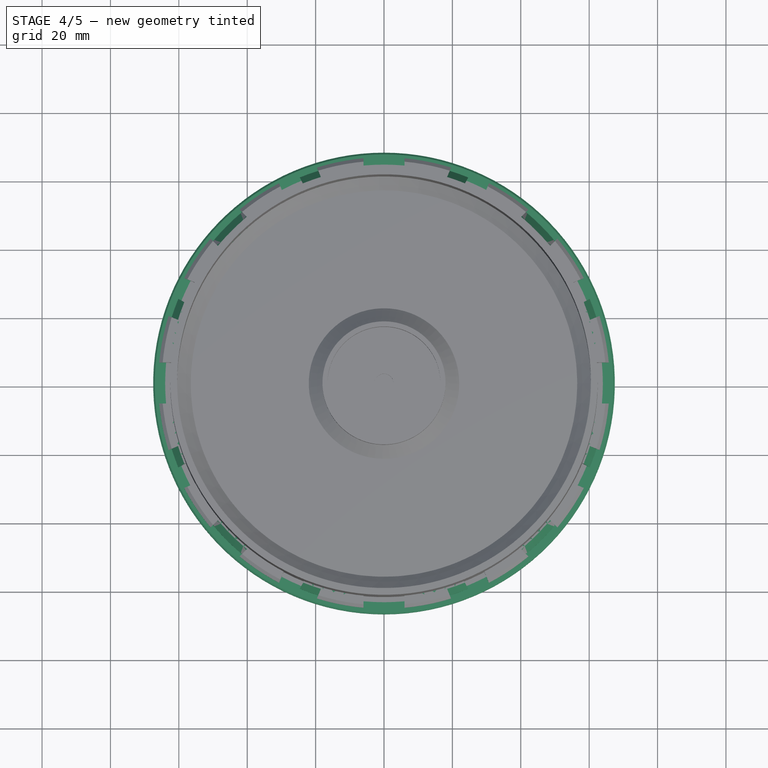
[diagram: stage 4 of 5 — top view after this stage's code; geometry added in this stage tinted green]
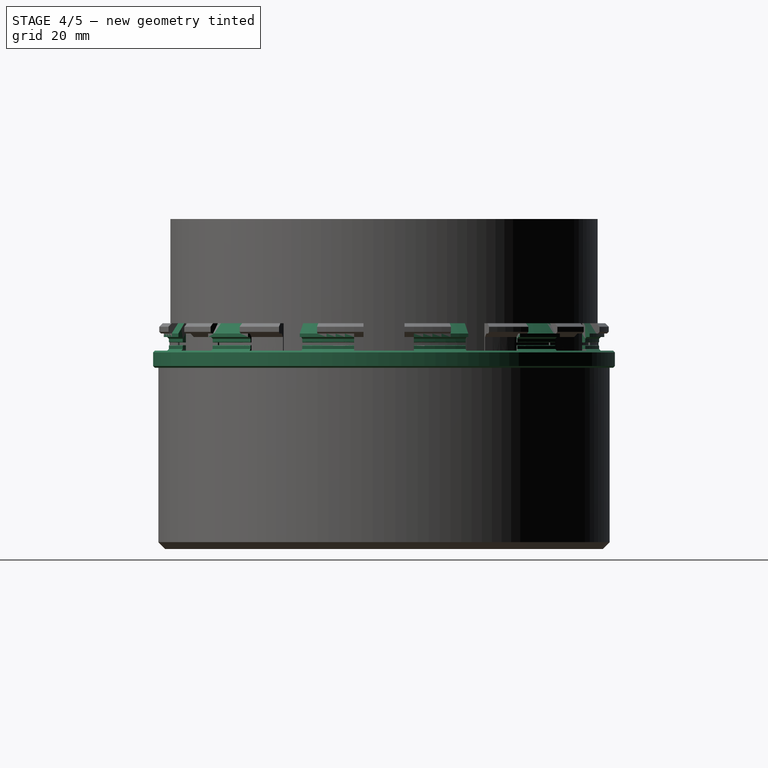
[diagram: stage 4 of 5 — right view after this stage's code; geometry added in this stage tinted green]
FEATURE [PartDesign::Body] Body  label="test"
  AllowCompound = false
  Group = -> [Sketch,Revolution,Sketch001,Pocket,PolarPattern]
  Origin = -> Origin
  Tip = -> PolarPattern
FEATURE [Sketcher::SketchObject] Sketch002
  ArcFitTolerance = 0
  AttachmentSupport = -> [YZ_Plane001]
  ExternalTypes = [0]
  FullyConstrained = true
  MakeInternals = false
  MapMode = 5
  Placement = pos=(0,0,0) rot=(0.57735,0.57735,0.57735;2.0944rad)
  sketch-geometry (33):
    g0: LineSegment StartX=67 StartY=5 StartZ=0 EndX=64 EndY=5 EndZ=0
    g1: LineSegment StartX=63.5 StartY=5.5 StartZ=0 EndX=63.5 EndY=6.4 EndZ=0
    g2: LineSegment StartX=64 StartY=9 StartZ=0 EndX=65 EndY=9 EndZ=0
    g3: LineSegment StartX=65 StartY=9 StartZ=0 EndX=65 EndY=10 EndZ=0
    g4: LineSegment StartX=65 StartY=10 StartZ=0 EndX=63 EndY=13 EndZ=0
    g5: LineSegment StartX=63 StartY=13 StartZ=0 EndX=60.5 EndY=13 EndZ=0
    g6: LineSegment StartX=0 StartY=0 StartZ=0 EndX=67 EndY=0 EndZ=0
    g7: LineSegment StartX=67.5 StartY=0.5 StartZ=0 EndX=67.5 EndY=4.5 EndZ=0
    g8: LineSegment StartX=0 StartY=0 StartZ=0 EndX=0 EndY=2 EndZ=0
    g9: LineSegment StartX=0 StartY=2 StartZ=0 EndX=60 EndY=2 EndZ=0
    g10: LineSegment StartX=60.5 StartY=13 StartZ=0 EndX=60.5 EndY=2.5 EndZ=0
    g11: ArcOfCircle [constr] CenterX=67 CenterY=4.5 CenterZ=0 NormalX=0 NormalY=0 NormalZ=1 AngleXU=0 Radius=0.5 StartAngle=7e-16 EndAngle=1.5708
    g12: GeomPoint [constr] X=67.5 Y=5 Z=0
    g13: LineSegment StartX=67.5 StartY=4.5 StartZ=0 EndX=67 EndY=5 EndZ=0
    g14: ArcOfCircle [constr] CenterX=67 CenterY=0.5 CenterZ=0 NormalX=0 NormalY=0 NormalZ=1 AngleXU=0 Radius=0.5 StartAngle=4.71239 EndAngle=6.28319
    g15: GeomPoint [constr] X=67.5 Y=0 Z=0
    g16: LineSegment StartX=67 StartY=0 StartZ=0 EndX=67.5 EndY=0.5 EndZ=0
    g17: ArcOfCircle [constr] CenterX=60 CenterY=2.5 CenterZ=0 NormalX=0 NormalY=0 NormalZ=1 AngleXU=0 Radius=0.5 StartAngle=4.71239 EndAngle=6.28319
    g18: GeomPoint [constr] X=60.5 Y=2 Z=0
    g19: LineSegment StartX=60 StartY=2 StartZ=0 EndX=60.5 EndY=2.5 EndZ=0
    g20: ArcOfCircle [constr] CenterX=64 CenterY=5.5 CenterZ=0 NormalX=0 NormalY=0 NormalZ=1 AngleXU=0 Radius=0.5 StartAngle=3.14159 EndAngle=4.71239
    g21: GeomPoint [constr] X=63.5 Y=5 Z=0
    g22: LineSegment StartX=63.5 StartY=5.5 StartZ=0 EndX=64 EndY=5 EndZ=0
    g23: ArcOfCircle [constr] CenterX=64 CenterY=8.5 CenterZ=0 NormalX=0 NormalY=0 NormalZ=1 AngleXU=0 Radius=0.5 StartAngle=1.5708 EndAngle=3.14159
    g24: GeomPoint [constr] X=63.5 Y=9 Z=0
    g25: LineSegment StartX=64 StartY=9 StartZ=0 EndX=63.5 EndY=8.5 EndZ=0
    g26: ArcOfCircle CenterX=62.1 CenterY=7 CenterZ=0 NormalX=0 NormalY=0 NormalZ=1 AngleXU=0 Radius=0.4 StartAngle=1.5708 EndAngle=4.71239
    g27: LineSegment StartX=62.1 StartY=7.4 StartZ=0 EndX=63.3 EndY=7.4 EndZ=0
    g28: LineSegment StartX=62.1 StartY=6.6 StartZ=0 EndX=63.3 EndY=6.6 EndZ=0
    g29: LineSegment StartX=63.5 StartY=7.6 StartZ=0 EndX=63.5 EndY=8.5 EndZ=0
    g30: ArcOfCircle CenterX=63.3 CenterY=7.6 CenterZ=0 NormalX=0 NormalY=0 NormalZ=1 AngleXU=0 Radius=0.2 StartAngle=4.71239 EndAngle=6.28319
    g31: ArcOfCircle CenterX=63.3 CenterY=6.4 CenterZ=0 NormalX=0 NormalY=0 NormalZ=1 AngleXU=0 Radius=0.2 StartAngle=1.5e-15 EndAngle=1.5708
    g32: GeomPoint [constr] X=63.5 Y=7 Z=0
  constraints (79):
    c: Horizontal(g0)
    c: Vertical(g1)
    c: Horizontal(g2)
    c: Coincident(g2,g3)
    c: Vertical(g3)
    c: Coincident(g3,g4)
    c: Coincident(g4,g5)
    c: Horizontal(g5)
    c: Horizontal(g6)
    c: Vertical(g7)
    c: DistanceY(g21,g24) = 4
    c: DistanceX(g24,g2) = 1.5
    c: DistanceY(g15,g12) = 5
    c: DistanceY(g2,g4) = 4
    c: DistanceX(g21,g12) = 4
    c: DistanceX(g4,g3) = 2
    c: DistanceY(g3,g4) = 3
    c: DistanceX(g-1,g21) = 63.5
    c: Coincident(g6,g-1)
    c: Coincident(g6,g8)
    c: PointOnObject(g8,g-2)
    c: Coincident(g8,g9)
    c: Horizontal(g9)
    c: Vertical(g5,g18)
    c: Coincident(g10,g5)
    c: DistanceY(g15,g18) = 2
    c: PointOnObject(g12,g0)
    c: PointOnObject(g12,g7)
    c: Tangent(g0,g11) = -1.5708
    c: Tangent(g7,g11) = -1.5708
    c: Coincident(g13,g0)
    c: Coincident(g13,g7)
    c: PointOnObject(g15,g7)
    c: PointOnObject(g15,g6)
    c: Tangent(g7,g14) = -1.5708
    c: Tangent(g6,g14) = -1.5708
    c: Coincident(g16,g7)
    c: Coincident(g16,g6)
    c: Radius(g14) = 0.5
    c: Equal(g14,g11)
    c: PointOnObject(g18,g9)
    c: PointOnObject(g18,g10)
    c: Tangent(g9,g17) = -1.5708
    c: Tangent(g10,g17) = 1.5708
    c: Coincident(g19,g9)
    c: Coincident(g19,g10)
    c: Equal(g11,g17)
    c: PointOnObject(g21,g1)
    c: PointOnObject(g21,g0)
    c: Tangent(g1,g20) = 1.5708
    c: Tangent(g0,g20) = 1.5708
    c: Coincident(g22,g1)
    c: Coincident(g22,g0)
    c: PointOnObject(g24,g2)
    c: PointOnObject(g24,g29)
    c: Tangent(g2,g23) = 1.5708
    c: Coincident(g29,g23) = 1.5708
    c: Coincident(g25,g2)
    c: Coincident(g25,g29)
    c: Equal(g23,g11)
    c: Equal(g20,g11)
    c: DistanceX(g5,g3) = 4.5
    c: Tangent(g26,g27) = 1.5708
    c: Tangent(g26,g28) = -1.5708
    c: Horizontal(g28)
    c: Radius(g26) = 0.4
    c: Tangent(g29,g30) = -1.5708
    c: Tangent(g27,g30) = -1.5708
    c: Tangent(g1,g31) = -1.5708
    c: Tangent(g28,g31) = 1.5708
    c: Equal(g30,g31)
    c: Radius(g30) = 0.2
    c: Vertical(g29)
    c: Vertical(g1,g29)
    c: Horizontal(g27)
    c: DistanceX(g27,g27) = 1.2
    c: Symmetric(g1,g29,g32)
    c: Equal(g29,g1)
    c: Equal(g25,g22)
FEATURE [PartDesign::Revolution] Revolution001
  Angle = 360
  Angle2 = 60
  Axis = (0,0,1)
  Base = (0,0,0)
  FuseOrder = 0
  FuzzyTolerance = 0
  Placement = pos=(0,0,0) rot=(1,1,1;2.0944rad)
  Profile = -> Sketch002
  ReferenceAxis = -> Sketch002 [V_Axis]
  Reversed = true
  Suppressed = false
  Type = 0
FEATURE [Sketcher::SketchObject] Sketch003
  ArcFitTolerance = 0
  AttachmentOffset = pos=(0,0,5) rot=(0,0,1;0rad)
  AttachmentSupport = -> [XY_Plane]
  ExternalTypes = [0]
  FullyConstrained = false
  MakeInternals = false
  MapMode = 5
  Placement = pos=(0,0,5) rot=(0,0,1;0rad)
  sketch-geometry (4):
    g0: LineSegment StartX=53.8693 StartY=8.73013 StartZ=0 EndX=53.8693 EndY=-8.73013 EndZ=0
    g1: LineSegment StartX=53.8693 StartY=-8.73013 StartZ=0 EndX=73.3262 EndY=-8.73013 EndZ=0
    g2: LineSegment StartX=73.3262 StartY=-8.73013 StartZ=0 EndX=73.3262 EndY=8.73013 EndZ=0
    g3: LineSegment StartX=73.3262 StartY=8.73013 StartZ=0 EndX=53.8693 EndY=8.73013 EndZ=0
  constraints (8):
    c: Coincident(g0,g1)
    c: Coincident(g1,g2)
    c: Coincident(g2,g3)
    c: Coincident(g3,g0)
    c: Vertical(g0)
    c: Horizontal(g1)
    c: Horizontal(g3)
    c: Symmetric(g2,g1,g-1)
FEATURE [PartDesign::Pocket] Pocket001
  BaseFeature = -> Revolution001
  Direction = (0,0,-1)
  FuzzyTolerance = 0
  Length = 5
  Length2 = 5
  Placement = pos=(0,0,0) rot=(1,1,1;2.0944rad)
  Profile = -> Sketch003
  ReferenceAxis = -> Sketch003 [N_Axis]
  Reversed = true
  SideType = 0
  Suppressed = false
  Type = 1
  Type2 = 0
FEATURE [PartDesign::PolarPattern] PolarPattern001
  Angle = 360
  Axis = -> Sketch003 [N_Axis]
  BaseFeature = -> Pocket001
  FuzzyTolerance = 0
  Mode = 0
  Occurrences = 12
  Offset = 120
  Originals = -> [Pocket001]
  Placement = pos=(0,0,0) rot=(1,1,1;2.0944rad)
  SpacingPattern = [0]
  Spacings = [-1,-1,-1,-1,-1,-1,-1,-1,-1,-1,-1]
  Suppressed = false
  TransformMode = 0
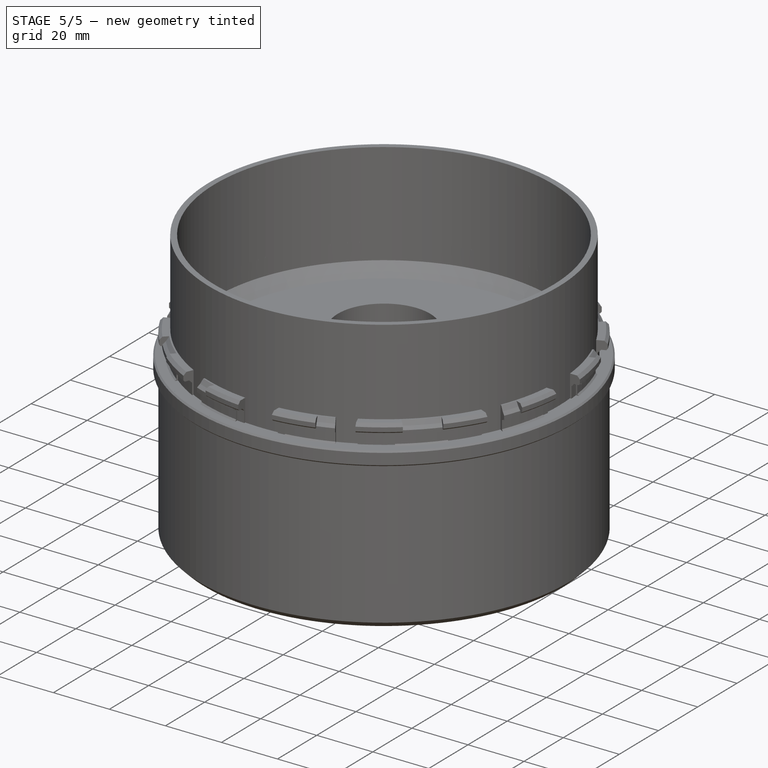
[diagram: stage 5 of 5 — iso view after this stage's code; geometry added in this stage tinted green]
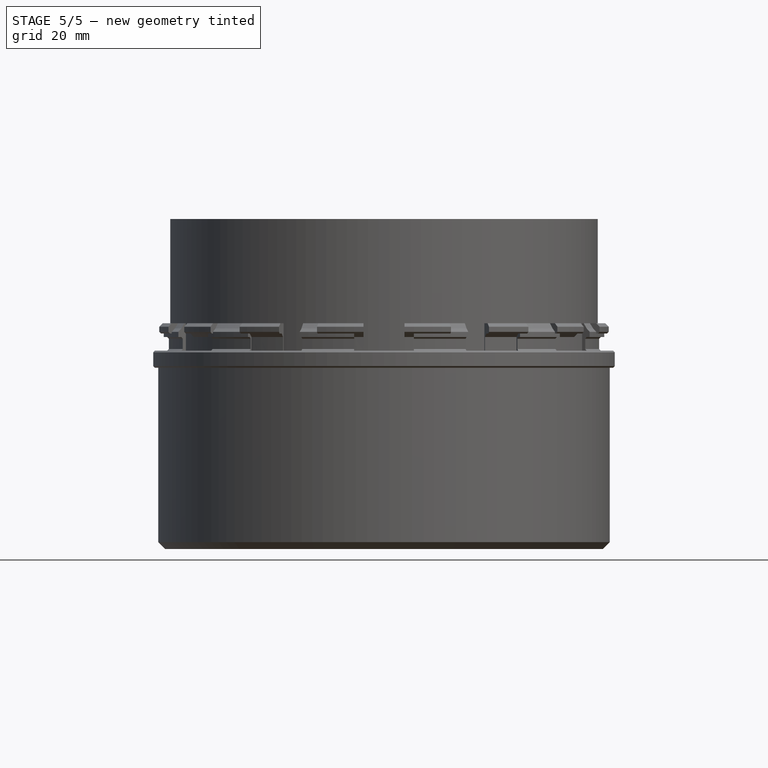
[diagram: stage 5 of 5 — front view after this stage's code; geometry added in this stage tinted green]
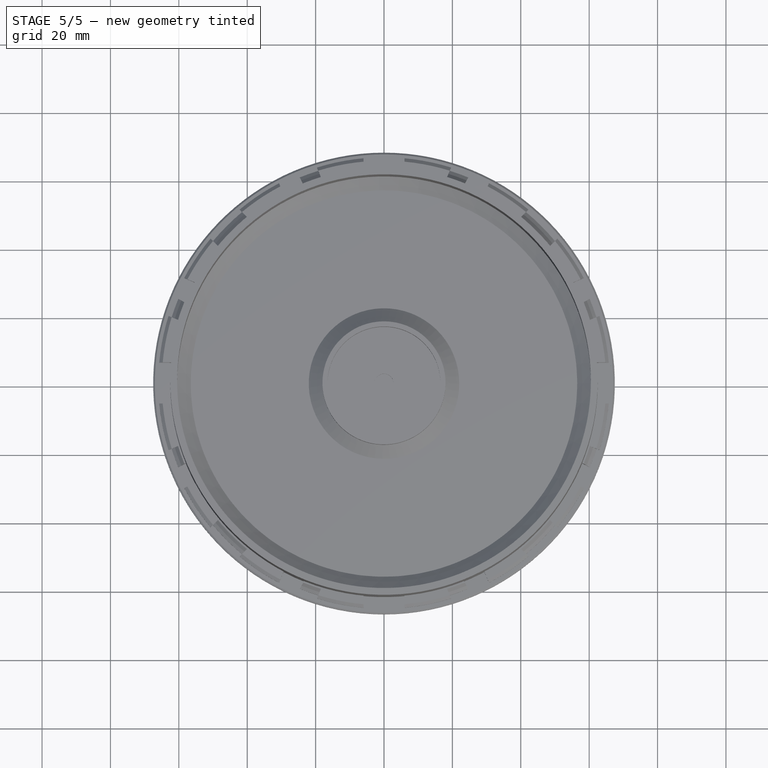
[diagram: stage 5 of 5 — top view after this stage's code; geometry added in this stage tinted green]
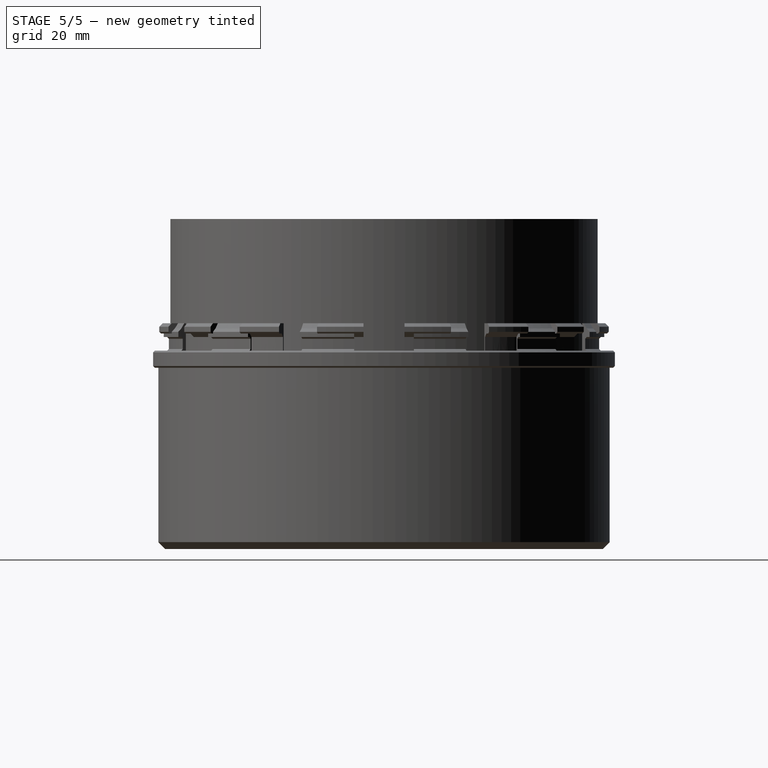
[diagram: stage 5 of 5 — right view after this stage's code; geometry added in this stage tinted green]
FEATURE [Sketcher::SketchObject] Sketch
  ArcFitTolerance = 0
  AttachmentSupport = -> [YZ_Plane]
  ExternalTypes = [0]
  FullyConstrained = true
  MakeInternals = false
  MapMode = 5
  Placement = pos=(0,0,0) rot=(0.57735,0.57735,0.57735;2.0944rad)
  sketch-geometry (9):
    g0: LineSegment StartX=66.5 StartY=5 StartZ=0 EndX=63.5 EndY=5 EndZ=0
    g1: LineSegment StartX=63.5 StartY=5 StartZ=0 EndX=63.5 EndY=9 EndZ=0
    g2: LineSegment StartX=63.5 StartY=9 StartZ=0 EndX=65 EndY=9 EndZ=0
    g3: LineSegment StartX=65 StartY=9 StartZ=0 EndX=65 EndY=10.5 EndZ=0
    g4: LineSegment StartX=65 StartY=10.5 StartZ=0 EndX=63.5 EndY=12 EndZ=0
    g5: LineSegment StartX=63.5 StartY=12 StartZ=0 EndX=60.5 EndY=12 EndZ=0
    g6: LineSegment StartX=60.5 StartY=12 StartZ=0 EndX=60.5 EndY=0 EndZ=0
    g7: LineSegment StartX=60.5 StartY=0 StartZ=0 EndX=66.5 EndY=0 EndZ=0
    g8: LineSegment StartX=66.5 StartY=0 StartZ=0 EndX=66.5 EndY=5 EndZ=0
  constraints (27):
    c: Horizontal(g0)
    c: Coincident(g0,g1)
    c: Vertical(g1)
    c: Coincident(g1,g2)
    c: Horizontal(g2)
    c: Coincident(g2,g3)
    c: Vertical(g3)
    c: Coincident(g3,g4)
    c: Coincident(g4,g5)
    c: Horizontal(g5)
    c: Coincident(g5,g6)
    c: Vertical(g6)
    c: Coincident(g6,g7)
    c: Horizontal(g7)
    c: Coincident(g7,g8)
    c: Coincident(g8,g0)
    c: Vertical(g8)
    c: DistanceY(g1,g1) = 4
    c: DistanceX(g2,g2) = 1.5
    c: DistanceX(g6,g0) = 3
    c: DistanceY(g8,g8) = 5
    c: DistanceY(g2,g4) = 3
    c: DistanceX(g0,g0) = 3
    c: DistanceX(g4,g3) = 1.5
    c: DistanceY(g3,g4) = 1.5
    c: DistanceX(g-1,g0) = 63.5
    c: PointOnObject(g7,g-1)
FEATURE [PartDesign::Revolution] Revolution
  Angle = 360
  Angle2 = 60
  Axis = (0,0,1)
  Base = (0,0,0)
  FuseOrder = 0
  FuzzyTolerance = 0
  Placement = pos=(0,0,0) rot=(1,1,1;2.0944rad)
  Profile = -> Sketch
  ReferenceAxis = -> Sketch [V_Axis]
  Reversed = true
  Suppressed = false
  Type = 0
FEATURE [Sketcher::SketchObject] Sketch001
  ArcFitTolerance = 0
  AttachmentSupport = -> [Revolution]
  ExternalTypes = [0]
  FullyConstrained = false
  MakeInternals = false
  MapMode = 5
  Placement = pos=(-1.1e-15,0,5) rot=(0,0,-1;1.5708rad)
  sketch-geometry (4):
    g0: LineSegment StartX=53.8693 StartY=8.73013 StartZ=0 EndX=53.8693 EndY=-8.73013 EndZ=0
    g1: LineSegment StartX=53.8693 StartY=-8.73013 StartZ=0 EndX=73.3262 EndY=-8.73013 EndZ=0
    g2: LineSegment StartX=73.3262 StartY=-8.73013 StartZ=0 EndX=73.3262 EndY=8.73013 EndZ=0
    g3: LineSegment StartX=73.3262 StartY=8.73013 StartZ=0 EndX=53.8693 EndY=8.73013 EndZ=0
  constraints (8):
    c: Coincident(g0,g1)
    c: Coincident(g1,g2)
    c: Coincident(g2,g3)
    c: Coincident(g3,g0)
    c: Vertical(g0)
    c: Horizontal(g1)
    c: Horizontal(g3)
    c: Symmetric(g2,g1,g-1)
FEATURE [PartDesign::Pocket] Pocket
  BaseFeature = -> Revolution
  Direction = (0,0,-1)
  FuzzyTolerance = 0
  Length = 5
  Length2 = 5
  Placement = pos=(0,0,0) rot=(1,1,1;2.0944rad)
  Profile = -> Sketch001
  ReferenceAxis = -> Sketch001 [N_Axis]
  Reversed = true
  SideType = 0
  Suppressed = false
  Type = 1
  Type2 = 0
FEATURE [PartDesign::PolarPattern] PolarPattern
  Angle = 360
  Axis = -> Sketch001 [N_Axis]
  BaseFeature = -> Pocket
  FuzzyTolerance = 0
  Mode = 0
  Occurrences = 12
  Offset = 120
  Originals = -> [Pocket]
  Placement = pos=(0,0,0) rot=(1,1,1;2.0944rad)
  SpacingPattern = [0]
  Spacings = [-1,-1,-1,-1,-1,-1,-1,-1,-1,-1,-1]
  Suppressed = false
  TransformMode = 0
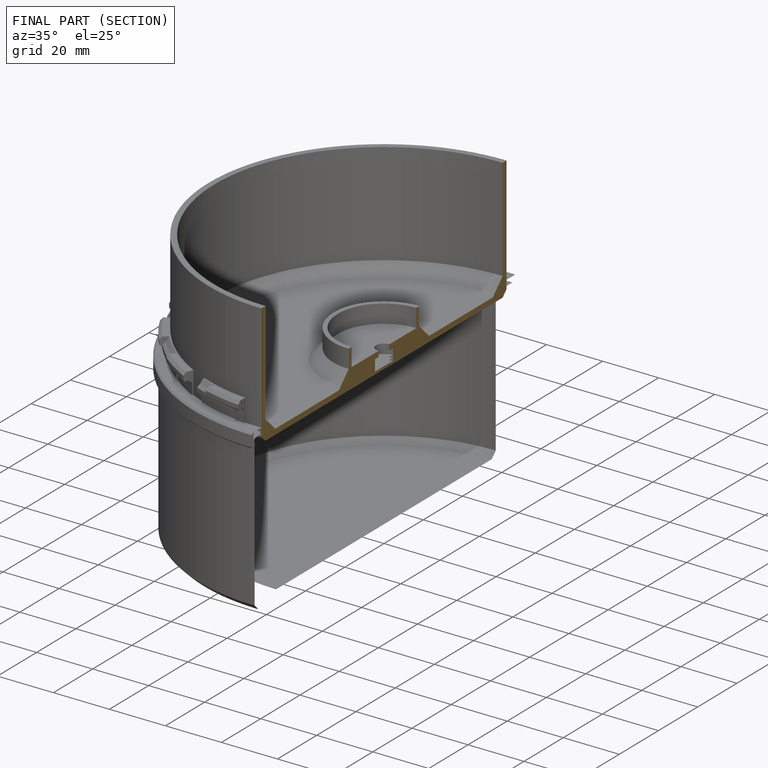
[diagram: finished part — half-section view (interior)]
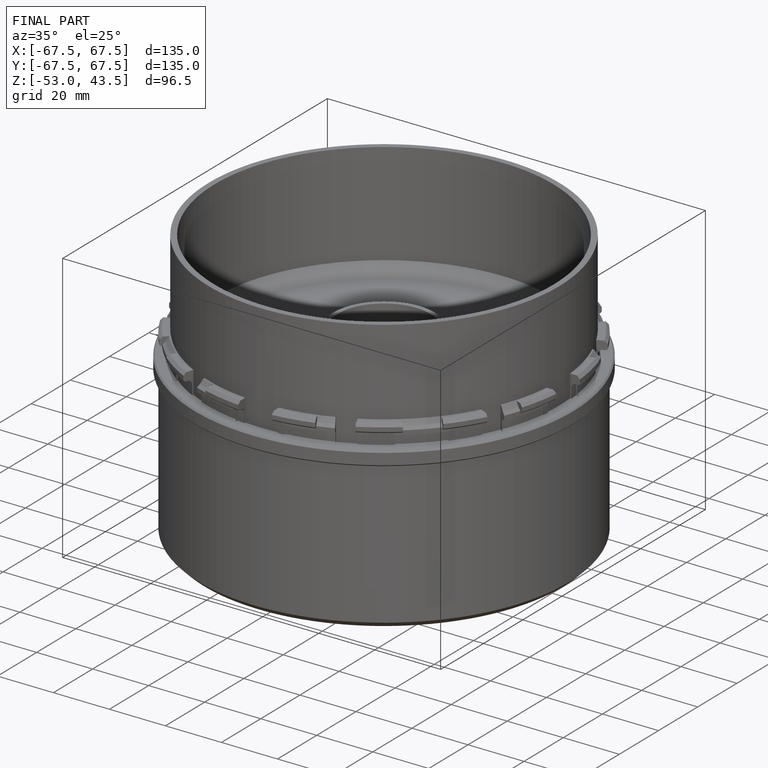
[diagram: finished part — iso view with bounding-box wireframe]
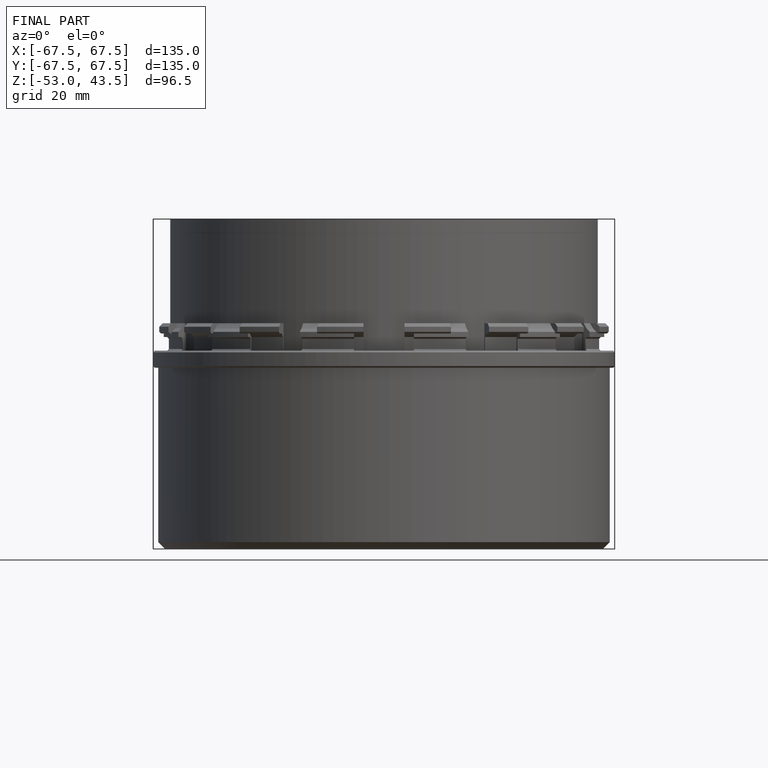
[diagram: finished part — front view with bounding-box wireframe]
